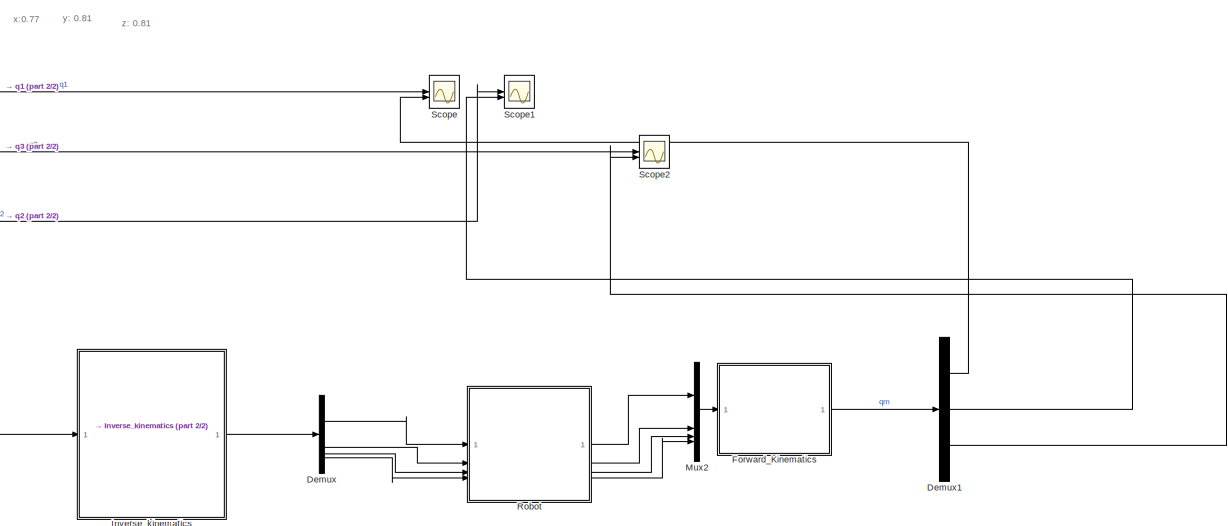
[diagram: root canvas - part 1/2, right side, full height]
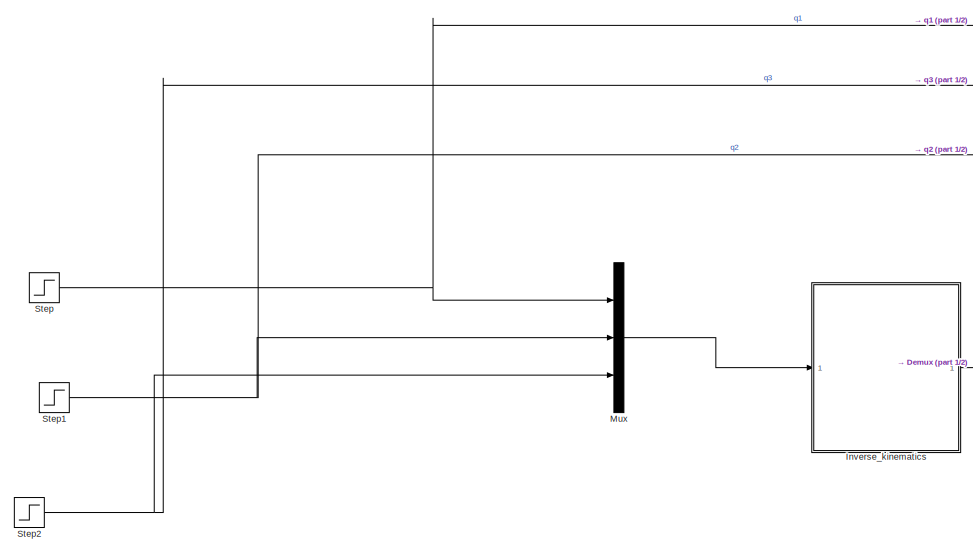
[diagram: root canvas - part 2/2, left side, full height]
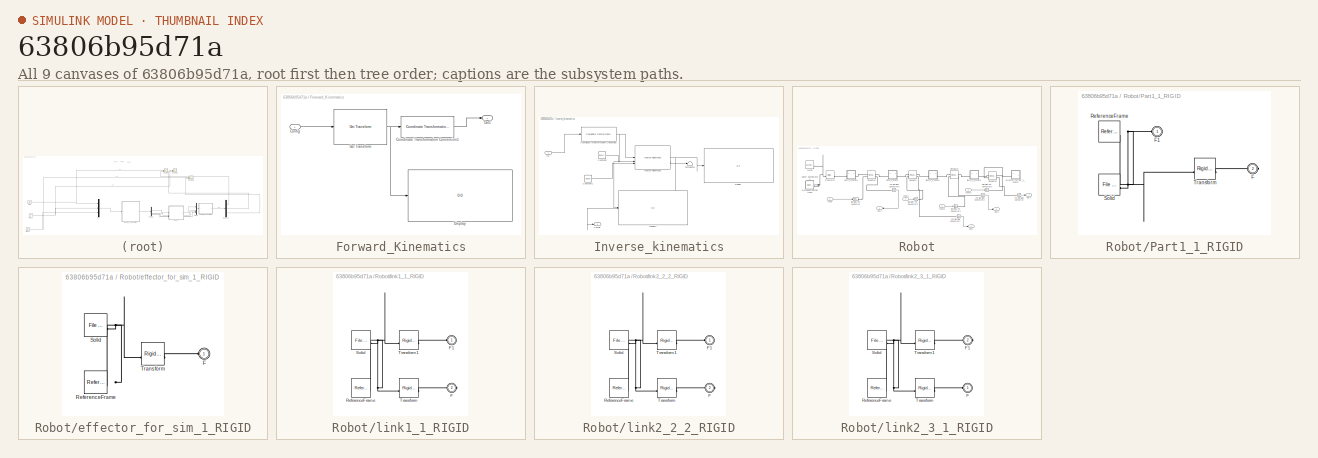
[diagram: thumbnail index - all 9 canvases of the model, root first then tree order]
MODEL slx_63806b95d71a
KIND model
CONFIG AbsTol = auto
CONFIG EnableMultiTasking = off
CONFIG FixedStep = auto
CONFIG MaxStep = auto
CONFIG MinStep = auto
CONFIG RelTol = 1e-3
CONFIG SampleTimeConstraint = Unconstrained
CONFIG SolverName = ode45
CONFIG StartTime = 0.0
CONFIG StopTime = 4
WORKSPACE source: external: MATLAB File  (data not in archive)
BLOCK [Demux] Demux
BLOCK [Demux] Demux1
  Outputs = 3
BLOCK [SubSystem] Forward_Kinematics
BLOCK [Inport] Forward_Kinematics/Config
BLOCK [Reference] Forward_Kinematics/Coordinate Transformation Conversion1  REF=robotcorelib/Coordinate Transformation Conversion
  LibrarySourceBlock = robotutilslib/Coordinate Transformation Conversion
  SourceBlock = robotcorelib/Coordinate Transformation Conversion
  SourceType = robotics.slcore.internal.block.CoordinateTransformationConversion
BLOCK [Display] Forward_Kinematics/Display
  Decimation = 1
BLOCK [Reference] Forward_Kinematics/Get Transform  REF=robotmaniplib/Get Transform
  SourceBlock = robotmaniplib/Get Transform
  SourceType = Get Transform
BLOCK [Outport] Forward_Kinematics/Out1
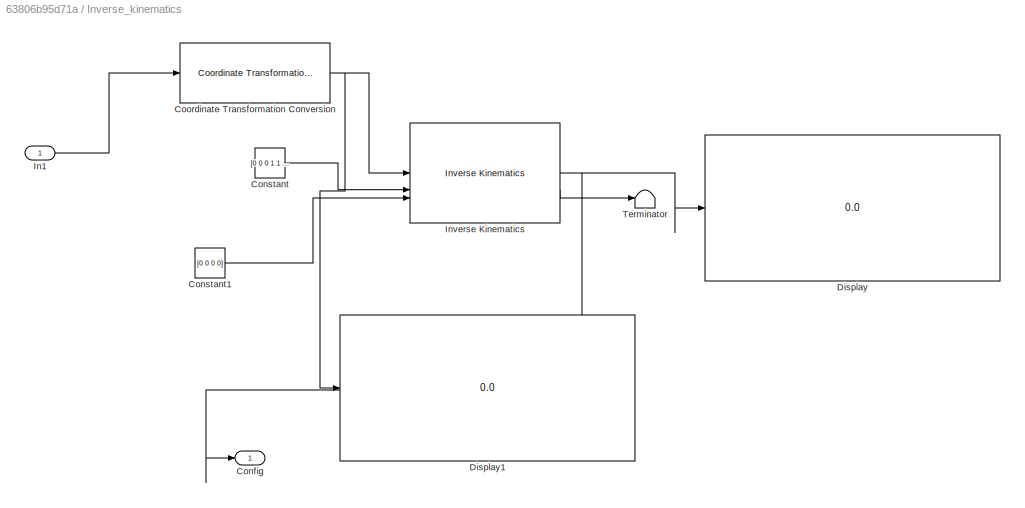
BLOCK [SubSystem] Inverse_kinematics
BLOCK [Outport] Inverse_kinematics/Config
BLOCK [Constant] Inverse_kinematics/Constant
  Value = [0 0 0 1 1 1]
BLOCK [Constant] Inverse_kinematics/Constant1
  Value = [0 0 0 0]
BLOCK [Reference] Inverse_kinematics/Coordinate Transformation Conversion  REF=robotcorelib/Coordinate Transformation Conversion
  LibrarySourceBlock = robotutilslib/Coordinate Transformation Conversion
  SourceBlock = robotcorelib/Coordinate Transformation Conversion
  SourceType = robotics.slcore.internal.block.CoordinateTransformationConversion
BLOCK [Display] Inverse_kinematics/Display
  Decimation = 1
BLOCK [Display] Inverse_kinematics/Display1
  Decimation = 1
BLOCK [Inport] Inverse_kinematics/In1
BLOCK [Reference] Inverse_kinematics/Inverse Kinematics  REF=robotmaniplib/Inverse Kinematics
  SourceBlock = robotmaniplib/Inverse Kinematics
  SourceType = Inverse Kinematics
BLOCK [Terminator] Inverse_kinematics/Terminator
BLOCK [Mux] Mux
  DisplayOption = bar
  Inputs = 3
BLOCK [Mux] Mux2
  DisplayOption = bar
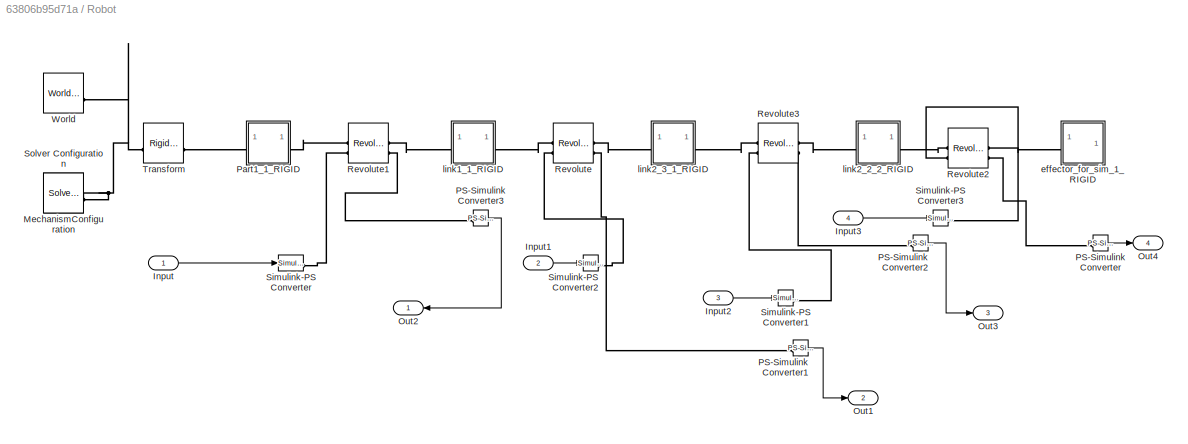
BLOCK [SubSystem] Robot
BLOCK [Inport] Robot/Input
BLOCK [Inport] Robot/Input1
  Port = 2
BLOCK [Inport] Robot/Input2
  Port = 3
BLOCK [Inport] Robot/Input3
  Port = 4
BLOCK [Reference] Robot/MechanismConfiguration  REF=sm_lib/Utilities/Mechanism
Configuration
  SourceBlock = sm_lib/Utilities/Mechanism\nConfiguration
  SourceType = Mechanism\nConfiguration
BLOCK [Outport] Robot/Out1
  Port = 2
BLOCK [Outport] Robot/Out2
  NameLocation = top
BLOCK [Outport] Robot/Out3
  Port = 3
BLOCK [Outport] Robot/Out4
  Port = 4
BLOCK [Reference] Robot/PS-Simulink Converter  REF=nesl_utility/PS-Simulink
Converter
  SourceBlock = nesl_utility/PS-Simulink\nConverter
  SourceType = PS-Simulink\nConverter
BLOCK [Reference] Robot/PS-Simulink Converter1  REF=nesl_utility/PS-Simulink
Converter
  SourceBlock = nesl_utility/PS-Simulink\nConverter
  SourceType = PS-Simulink\nConverter
BLOCK [Reference] Robot/PS-Simulink Converter2  REF=nesl_utility/PS-Simulink
Converter
  SourceBlock = nesl_utility/PS-Simulink\nConverter
  SourceType = PS-Simulink\nConverter
BLOCK [Reference] Robot/PS-Simulink Converter3  REF=nesl_utility/PS-Simulink
Converter
  SourceBlock = nesl_utility/PS-Simulink\nConverter
  SourceType = PS-Simulink\nConverter
BLOCK [SubSystem] Robot/Part1_1_RIGID
BLOCK [PMIOPort] Robot/Part1_1_RIGID/F
  Port = 2
  Side = Right
BLOCK [PMIOPort] Robot/Part1_1_RIGID/F1
  Side = Left
BLOCK [Reference] Robot/Part1_1_RIGID/ReferenceFrame  REF=sm_lib/Frames and
Transforms/Reference
Frame
  SourceBlock = sm_lib/Frames and\nTransforms/Reference\nFrame
  SourceType = Reference\nFrame
BLOCK [Reference] Robot/Part1_1_RIGID/Solid  REF=sm_lib/Body Elements/File Solid
  SourceBlock = sm_lib/Body Elements/File Solid
  SourceType = File Solid
BLOCK [Reference] Robot/Part1_1_RIGID/Transform  REF=sm_lib/Frames and
Transforms/Rigid
Transform
  SourceBlock = sm_lib/Frames and\nTransforms/Rigid\nTransform
  SourceType = Rigid\nTransform
BLOCK [Reference] Robot/Revolute  REF=sm_lib/Joints/Revolute Joint
  SourceBlock = sm_lib/Joints/Revolute Joint
  SourceType = Revolute Joint
BLOCK [Reference] Robot/Revolute1  REF=sm_lib/Joints/Revolute Joint
  SourceBlock = sm_lib/Joints/Revolute Joint
  SourceType = Revolute Joint
BLOCK [Reference] Robot/Revolute2  REF=sm_lib/Joints/Revolute Joint
  SourceBlock = sm_lib/Joints/Revolute Joint
  SourceType = Revolute Joint
BLOCK [Reference] Robot/Revolute3  REF=sm_lib/Joints/Revolute Joint
  SourceBlock = sm_lib/Joints/Revolute Joint
  SourceType = Revolute Joint
BLOCK [Reference] Robot/Simulink-PS Converter  REF=nesl_utility/Simulink-PS
Converter
  SourceBlock = nesl_utility/Simulink-PS\nConverter
  SourceType = Simulink-PS\nConverter
BLOCK [Reference] Robot/Simulink-PS Converter1  REF=nesl_utility/Simulink-PS
Converter
  SourceBlock = nesl_utility/Simulink-PS\nConverter
  SourceType = Simulink-PS\nConverter
BLOCK [Reference] Robot/Simulink-PS Converter2  REF=nesl_utility/Simulink-PS
Converter
  SourceBlock = nesl_utility/Simulink-PS\nConverter
  SourceType = Simulink-PS\nConverter
BLOCK [Reference] Robot/Simulink-PS Converter3  REF=nesl_utility/Simulink-PS
Converter
  SourceBlock = nesl_utility/Simulink-PS\nConverter
  SourceType = Simulink-PS\nConverter
BLOCK [Reference] Robot/Solver Configuration  REF=nesl_utility/Solver
Configuration
  SourceBlock = nesl_utility/Solver\nConfiguration
  SourceType = Solver\nConfiguration
BLOCK [Reference] Robot/Transform  REF=sm_lib/Frames and
Transforms/Rigid
Transform
  SourceBlock = sm_lib/Frames and\nTransforms/Rigid\nTransform
  SourceType = Rigid\nTransform
BLOCK [Reference] Robot/World  REF=sm_lib/Frames and
Transforms/World Frame
  SourceBlock = sm_lib/Frames and\nTransforms/World Frame
  SourceType = World Frame
BLOCK [SubSystem] Robot/effector_for_sim_1_RIGID
BLOCK [PMIOPort] Robot/effector_for_sim_1_RIGID/F
  Side = Left
BLOCK [Reference] Robot/effector_for_sim_1_RIGID/ReferenceFrame  REF=sm_lib/Frames and
Transforms/Reference
Frame
  SourceBlock = sm_lib/Frames and\nTransforms/Reference\nFrame
  SourceType = Reference\nFrame
BLOCK [Reference] Robot/effector_for_sim_1_RIGID/Solid  REF=sm_lib/Body Elements/File Solid
  SourceBlock = sm_lib/Body Elements/File Solid
  SourceType = File Solid
BLOCK [Reference] Robot/effector_for_sim_1_RIGID/Transform  REF=sm_lib/Frames and
Transforms/Rigid
Transform
  SourceBlock = sm_lib/Frames and\nTransforms/Rigid\nTransform
  SourceType = Rigid\nTransform
BLOCK [SubSystem] Robot/link1_1_RIGID
BLOCK [PMIOPort] Robot/link1_1_RIGID/F
  Port = 2
  Side = Right
BLOCK [PMIOPort] Robot/link1_1_RIGID/F1
  Side = Left
BLOCK [Reference] Robot/link1_1_RIGID/ReferenceFrame  REF=sm_lib/Frames and
Transforms/Reference
Frame
  SourceBlock = sm_lib/Frames and\nTransforms/Reference\nFrame
  SourceType = Reference\nFrame
BLOCK [Reference] Robot/link1_1_RIGID/Solid  REF=sm_lib/Body Elements/File Solid
  SourceBlock = sm_lib/Body Elements/File Solid
  SourceType = File Solid
BLOCK [Reference] Robot/link1_1_RIGID/Transform  REF=sm_lib/Frames and
Transforms/Rigid
Transform
  SourceBlock = sm_lib/Frames and\nTransforms/Rigid\nTransform
  SourceType = Rigid\nTransform
BLOCK [Reference] Robot/link1_1_RIGID/Transform1  REF=sm_lib/Frames and
Transforms/Rigid
Transform
  SourceBlock = sm_lib/Frames and\nTransforms/Rigid\nTransform
  SourceType = Rigid\nTransform
BLOCK [SubSystem] Robot/link2_2_2_RIGID
BLOCK [PMIOPort] Robot/link2_2_2_RIGID/F
  Port = 2
  Side = Right
BLOCK [PMIOPort] Robot/link2_2_2_RIGID/F1
  Side = Left
BLOCK [Reference] Robot/link2_2_2_RIGID/ReferenceFrame  REF=sm_lib/Frames and
Transforms/Reference
Frame
  SourceBlock = sm_lib/Frames and\nTransforms/Reference\nFrame
  SourceType = Reference\nFrame
BLOCK [Reference] Robot/link2_2_2_RIGID/Solid  REF=sm_lib/Body Elements/File Solid
  SourceBlock = sm_lib/Body Elements/File Solid
  SourceType = File Solid
BLOCK [Reference] Robot/link2_2_2_RIGID/Transform  REF=sm_lib/Frames and
Transforms/Rigid
Transform
  SourceBlock = sm_lib/Frames and\nTransforms/Rigid\nTransform
  SourceType = Rigid\nTransform
BLOCK [Reference] Robot/link2_2_2_RIGID/Transform1  REF=sm_lib/Frames and
Transforms/Rigid
Transform
  SourceBlock = sm_lib/Frames and\nTransforms/Rigid\nTransform
  SourceType = Rigid\nTransform
BLOCK [SubSystem] Robot/link2_3_1_RIGID
BLOCK [PMIOPort] Robot/link2_3_1_RIGID/F
  Side = Left
BLOCK [PMIOPort] Robot/link2_3_1_RIGID/F1
  Port = 2
  Side = Right
BLOCK [Reference] Robot/link2_3_1_RIGID/ReferenceFrame  REF=sm_lib/Frames and
Transforms/Reference
Frame
  SourceBlock = sm_lib/Frames and\nTransforms/Reference\nFrame
  SourceType = Reference\nFrame
BLOCK [Reference] Robot/link2_3_1_RIGID/Solid  REF=sm_lib/Body Elements/File Solid
  SourceBlock = sm_lib/Body Elements/File Solid
  SourceType = File Solid
BLOCK [Reference] Robot/link2_3_1_RIGID/Transform  REF=sm_lib/Frames and
Transforms/Rigid
Transform
  SourceBlock = sm_lib/Frames and\nTransforms/Rigid\nTransform
  SourceType = Rigid\nTransform
BLOCK [Reference] Robot/link2_3_1_RIGID/Transform1  REF=sm_lib/Frames and
Transforms/Rigid
Transform
  SourceBlock = sm_lib/Frames and\nTransforms/Rigid\nTransform
  SourceType = Rigid\nTransform
BLOCK [Scope] Scope
  Floating = off
  NumInputPorts = 2
  ScopeSpecificationString = Simulink.scopes.TimeScopeBlockCfg('CurrentConfiguration', extmgr.ConfigurationSet(extmgr.Configuration('Core','General UI',true),extmgr.Configuration('Core','Source UI',true),extmgr.Configuration('Sources','WiredSimulink',true),extmgr.Configuration('Visuals','Time Domain',true,'SerializedDisplays',{struct('MinYLimReal','-0.91125','MaxYLimReal','0.10125','YLabelReal','','MinYLimMag','0.00000','MaxY...<+1507ch>
BLOCK [Scope] Scope1
  Floating = off
  NumInputPorts = 2
  ScopeSpecificationString = Simulink.scopes.TimeScopeBlockCfg('CurrentConfiguration', extmgr.ConfigurationSet(extmgr.Configuration('Core','General UI',true),extmgr.Configuration('Core','Source UI',true),extmgr.Configuration('Sources','WiredSimulink',true,'DataLoggingVariableName','ScopeData1'),extmgr.Configuration('Visuals','Time Domain',true,'SerializedDisplays',{struct('MinYLimReal','-0.11635','MaxYLimReal','0.04714','YLab...<+1501ch>
BLOCK [Scope] Scope2
  Floating = off
  NumInputPorts = 2
  ScopeSpecificationString = Simulink.scopes.TimeScopeBlockCfg('CurrentConfiguration', extmgr.ConfigurationSet(extmgr.Configuration('Core','General UI',true),extmgr.Configuration('Core','Source UI',true),extmgr.Configuration('Sources','WiredSimulink',true,'DataLoggingVariableName','ScopeData2'),extmgr.Configuration('Visuals','Time Domain',true,'SerializedDisplays',{struct('MinYLimReal','-0.09221','MaxYLimReal','0.67691','YLab...<+1499ch>
BLOCK [Step] Step
  After = -0.81
  SampleTime = 0
BLOCK [Step] Step1
  After = -0.1
  SampleTime = 0
BLOCK [Step] Step2
  After = 0.6
  SampleTime = 0
ANNOTATION (root): x:0.77
ANNOTATION (root): y: 0.81
ANNOTATION (root): z: 0.81
LINE Demux1:1 -> Scope:2
LINE Demux1:2 -> Scope1:2
LINE Demux1:3 -> Scope2:2
LINE Demux:1 -> Robot:1
LINE Demux:2 -> Robot:2
LINE Demux:3 -> Robot:3
LINE Demux:4 -> Robot:4
LINE Forward_Kinematics/Config:1 -> Forward_Kinematics/Get Transform:1
LINE Forward_Kinematics/Coordinate Transformation Conversion1:1 -> Forward_Kinematics/Out1:1
NET Forward_Kinematics/Get Transform:1 -> Forward_Kinematics/Coordinate Transformation Conversion1:1, Forward_Kinematics/Display:1
LINE Forward_Kinematics:1 -> Demux1:1
LINE Inverse_kinematics/Constant1:1 -> Inverse_kinematics/Inverse Kinematics:3
LINE Inverse_kinematics/Constant:1 -> Inverse_kinematics/Inverse Kinematics:2
NET Inverse_kinematics/Coordinate Transformation Conversion:1 -> Inverse_kinematics/Display1:1, Inverse_kinematics/Inverse Kinematics:1
LINE Inverse_kinematics/In1:1 -> Inverse_kinematics/Coordinate Transformation Conversion:1
NET Inverse_kinematics/Inverse Kinematics:1 -> Inverse_kinematics/Config:1, Inverse_kinematics/Display:1
LINE Inverse_kinematics/Inverse Kinematics:2 -> Inverse_kinematics/Terminator:1
LINE Inverse_kinematics:1 -> Demux:1
LINE Mux2:1 -> Forward_Kinematics:1
LINE Mux:1 -> Inverse_kinematics:1
LINE Robot/Input1:1 -> Robot/Simulink-PS Converter2:1
LINE Robot/Input2:1 -> Robot/Simulink-PS Converter1:1
LINE Robot/Input3:1 -> Robot/Simulink-PS Converter3:1
LINE Robot/Input:1 -> Robot/Simulink-PS Converter:1
LINE Robot/PS-Simulink Converter1:1 -> Robot/Out1:1
LINE Robot/PS-Simulink Converter2:1 -> Robot/Out3:1
LINE Robot/PS-Simulink Converter3:1 -> Robot/Out2:1
LINE Robot/PS-Simulink Converter:1 -> Robot/Out4:1
LINE Robot:1 -> Mux2:1
LINE Robot:2 -> Mux2:2
LINE Robot:3 -> Mux2:3
LINE Robot:4 -> Mux2:4
NET Step1:1 -> Mux:2, Scope1:1
NET Step2:1 -> Mux:3, Scope2:1
NET Step:1 -> Mux:1, Scope:1
PNET net1: Robot/MechanismConfiguration:RConn1 -- Robot/Solver Configuration:RConn1 -- Robot/Transform:LConn1 -- Robot/World:RConn1
PLINE Robot/PS-Simulink Converter1:LConn1 -- Robot/Revolute:RConn2
PLINE Robot/PS-Simulink Converter2:LConn1 -- Robot/Revolute3:RConn2
PLINE Robot/PS-Simulink Converter3:LConn1 -- Robot/Revolute1:RConn2
PLINE Robot/PS-Simulink Converter:LConn1 -- Robot/Revolute2:RConn2
PNET net2: Robot/Part1_1_RIGID/F1:RConn1 -- Robot/Part1_1_RIGID/ReferenceFrame:RConn1 -- Robot/Part1_1_RIGID/Solid:RConn1 -- Robot/Part1_1_RIGID/Transform:LConn1
PLINE Robot/Part1_1_RIGID/F:RConn1 -- Robot/Part1_1_RIGID/Transform:RConn1
PLINE Robot/Part1_1_RIGID:LConn1 -- Robot/Transform:RConn1
PLINE Robot/Part1_1_RIGID:RConn1 -- Robot/Revolute1:LConn1
PLINE Robot/Revolute1:LConn2 -- Robot/Simulink-PS Converter:RConn1
PLINE Robot/Revolute1:RConn1 -- Robot/link1_1_RIGID:LConn1
PLINE Robot/Revolute2:LConn1 -- Robot/link2_2_2_RIGID:RConn1
PLINE Robot/Revolute2:LConn2 -- Robot/Simulink-PS Converter3:RConn1
PLINE Robot/Revolute2:RConn1 -- Robot/effector_for_sim_1_RIGID:LConn1
PLINE Robot/Revolute3:LConn1 -- Robot/link2_3_1_RIGID:RConn1
PLINE Robot/Revolute3:LConn2 -- Robot/Simulink-PS Converter1:RConn1
PLINE Robot/Revolute3:RConn1 -- Robot/link2_2_2_RIGID:LConn1
PLINE Robot/Revolute:LConn1 -- Robot/link1_1_RIGID:RConn1
PLINE Robot/Revolute:LConn2 -- Robot/Simulink-PS Converter2:RConn1
PLINE Robot/Revolute:RConn1 -- Robot/link2_3_1_RIGID:LConn1
PLINE Robot/effector_for_sim_1_RIGID/F:RConn1 -- Robot/effector_for_sim_1_RIGID/Transform:RConn1
PNET net3: Robot/effector_for_sim_1_RIGID/ReferenceFrame:RConn1 -- Robot/effector_for_sim_1_RIGID/Solid:RConn1 -- Robot/effector_for_sim_1_RIGID/Transform:LConn1
PLINE Robot/link1_1_RIGID/F1:RConn1 -- Robot/link1_1_RIGID/Transform1:RConn1
PLINE Robot/link1_1_RIGID/F:RConn1 -- Robot/link1_1_RIGID/Transform:RConn1
PNET net4: Robot/link1_1_RIGID/ReferenceFrame:RConn1 -- Robot/link1_1_RIGID/Solid:RConn1 -- Robot/link1_1_RIGID/Transform1:LConn1 -- Robot/link1_1_RIGID/Transform:LConn1
PLINE Robot/link2_2_2_RIGID/F1:RConn1 -- Robot/link2_2_2_RIGID/Transform1:RConn1
PLINE Robot/link2_2_2_RIGID/F:RConn1 -- Robot/link2_2_2_RIGID/Transform:RConn1
PNET net5: Robot/link2_2_2_RIGID/ReferenceFrame:RConn1 -- Robot/link2_2_2_RIGID/Solid:RConn1 -- Robot/link2_2_2_RIGID/Transform1:LConn1 -- Robot/link2_2_2_RIGID/Transform:LConn1
PLINE Robot/link2_3_1_RIGID/F1:RConn1 -- Robot/link2_3_1_RIGID/Transform1:RConn1
PLINE Robot/link2_3_1_RIGID/F:RConn1 -- Robot/link2_3_1_RIGID/Transform:RConn1
PNET net6: Robot/link2_3_1_RIGID/ReferenceFrame:RConn1 -- Robot/link2_3_1_RIGID/Solid:RConn1 -- Robot/link2_3_1_RIGID/Transform1:LConn1 -- Robot/link2_3_1_RIGID/Transform:LConn1
note: NET lines group one-source signal fan-out (src -> all destinations, sorted); 1:1 wires keep LINE; PNET lines group multi-terminal physical nets as a canonical sorted terminal list (undirected conserving connections); 2-terminal nets keep the pairwise PLINE form
